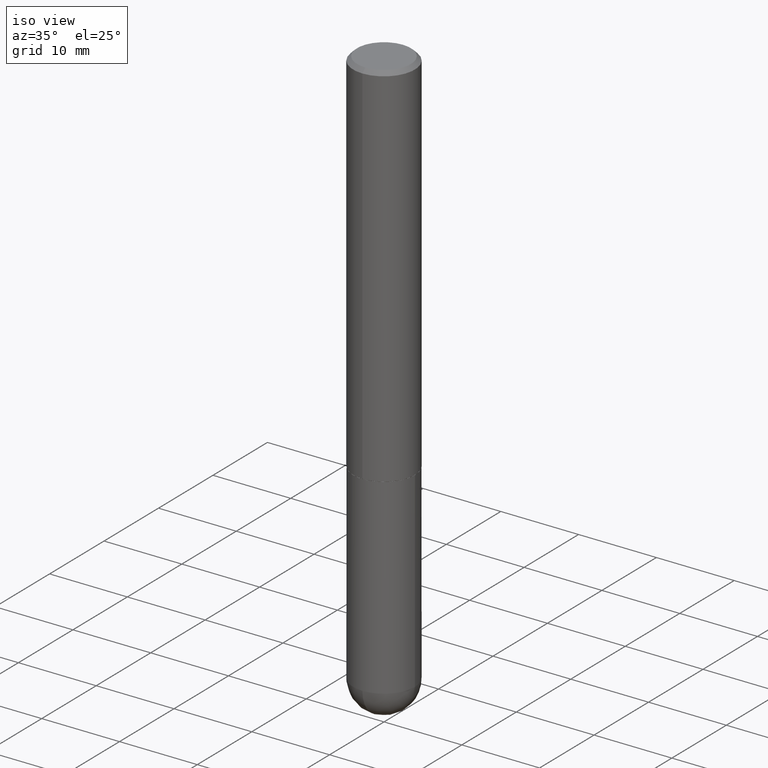
[diagram: clean part render]
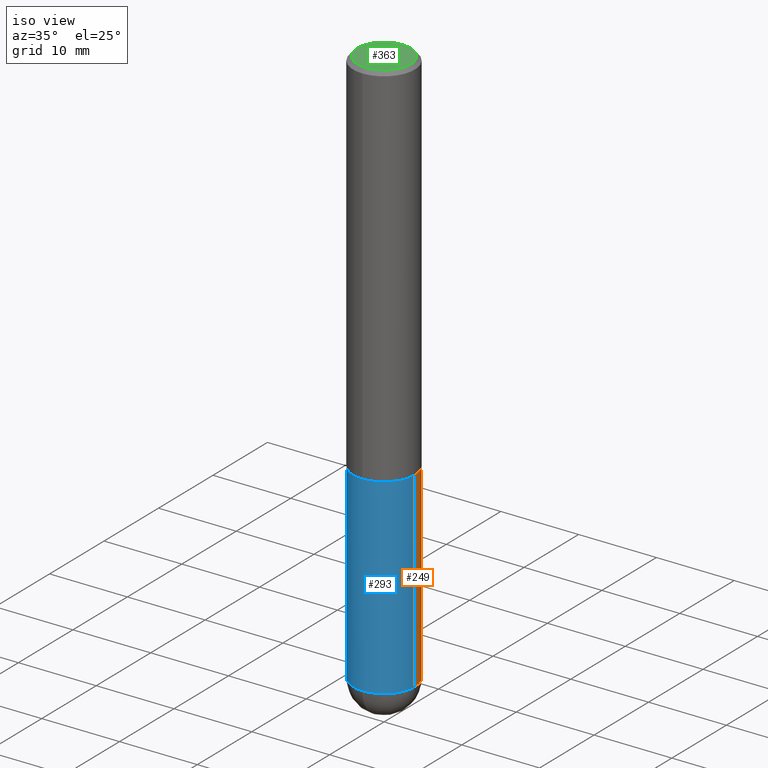
[diagram: same view with three faces highlighted in distinct colors, each labeled with its STEP entity id]
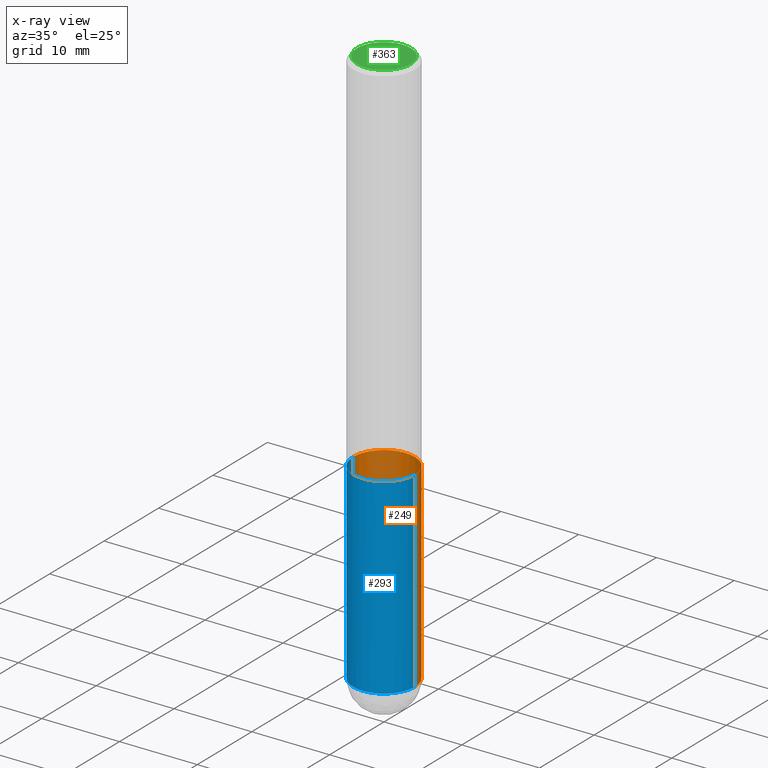
[diagram: x-ray of the same camera — body ghosted, the three highlighted faces saturated]
A machine part, iso view with three faces highlighted in distinct colors.
The next image is the same camera in x-ray (body ghosted, the three faces saturated) — at least one of them is partly hidden behind the body in this view.
Their STEP definitions:

[orange] entity #249 — the highlighted cylindrical surface (partial cylindrical patch) has radius 3.9688 mm, axis along (-0, 0, 1).
#26 = CARTESIAN_POINT ( 'NONE',  ( -0.1562500000000000000, 1.110223024625156540E-15, -7.685836078523291160E-30 ) ) ;
#42 = ORIENTED_EDGE ( 'NONE', *, *, #94, .T. ) ;
#57 = CARTESIAN_POINT ( 'NONE',  ( 0.000000000000000000, 0.000000000000000000, 0.000000000000000000 ) ) ;
#66 = VERTEX_POINT ( 'NONE', #193 ) ;
#68 = AXIS2_PLACEMENT_3D ( 'NONE', #57, #310, #221 ) ;
#72 = ORIENTED_EDGE ( 'NONE', *, *, #288, .T. ) ;
#89 = CARTESIAN_POINT ( 'NONE',  ( 4.585254011597131119E-29, -6.546527510330898707E-15, -1.875000000000000000 ) ) ;
#94 = EDGE_CURVE ( 'NONE', #159, #66, #392, .T. ) ;
#126 = DIRECTION ( 'NONE',  ( -2.445468806185136597E-29, 3.491481338843145583E-15, 1.000000000000000000 ) ) ;
#130 = EDGE_LOOP ( 'NONE', ( #42, #254, #222, #235, #72 ) ) ;
#131 = DIRECTION ( 'NONE',  ( 1.000000000000000000, -6.982962677686262766E-15, 0.000000000000000000 ) ) ;
#132 = DIRECTION ( 'NONE',  ( -2.445468806185136877E-29, 3.491481338843145188E-15, 1.000000000000000000 ) ) ;
#144 = AXIS2_PLACEMENT_3D ( 'NONE', #89, #314, #152 ) ;
#145 = CARTESIAN_POINT ( 'NONE',  ( 1.091087918388547213E-15, 0.1562499999999898970, -2.843750000000000444 ) ) ;
#149 = CARTESIAN_POINT ( 'NONE',  ( 0.1562500000000000000, -9.328801702221526319E-15, -2.843750000000000000 ) ) ;
#152 = DIRECTION ( 'NONE',  ( 1.000000000000000000, -6.982962677686269077E-15, 0.000000000000000000 ) ) ;
#159 = VERTEX_POINT ( 'NONE', #145 ) ;
#164 = EDGE_CURVE ( 'NONE', #381, #261, #231, .T. ) ;
#181 = CYLINDRICAL_SURFACE ( 'NONE', #68, 0.1562500000000000000 ) ;
#187 = CARTESIAN_POINT ( 'NONE',  ( -0.1562500000000000000, -7.127490759207891394E-15, -1.875000000000000000 ) ) ;
#193 = CARTESIAN_POINT ( 'NONE',  ( -0.1562500000000000000, -7.127490759207891394E-15, -2.843750000000000000 ) ) ;
#201 = VERTEX_POINT ( 'NONE', #149 ) ;
#221 = DIRECTION ( 'NONE',  ( 1.000000000000000000, -6.982962677686266711E-15, 4.876176775795936353E-29 ) ) ;
#222 = ORIENTED_EDGE ( 'NONE', *, *, #164, .F. ) ;
#231 = CIRCLE ( 'NONE', #144, 0.1562500000000000000 ) ;
#235 = ORIENTED_EDGE ( 'NONE', *, *, #323, .F. ) ;
#249 = ADVANCED_FACE ( 'NONE', ( #342 ), #181, .T. ) ;
#254 = ORIENTED_EDGE ( 'NONE', *, *, #313, .T. ) ;
#258 = CIRCLE ( 'NONE', #399, 0.1562500000000000000 ) ;
#260 = DIRECTION ( 'NONE',  ( -2.445468806185136597E-29, 3.491481338843145583E-15, 1.000000000000000000 ) ) ;
#261 = VERTEX_POINT ( 'NONE', #187 ) ;
#262 = LINE ( 'NONE', #327, #405 ) ;
#264 = DIRECTION ( 'NONE',  ( 1.000000000000000000, -6.982962677686262766E-15, 0.000000000000000000 ) ) ;
#288 = EDGE_CURVE ( 'NONE', #201, #159, #258, .T. ) ;
#292 = DIRECTION ( 'NONE',  ( -2.445468806185136877E-29, 3.491481338843145188E-15, 1.000000000000000000 ) ) ;
#310 = DIRECTION ( 'NONE',  ( -2.445468806185136597E-29, 3.491481338843145583E-15, 1.000000000000000000 ) ) ;
#313 = EDGE_CURVE ( 'NONE', #66, #261, #319, .T. ) ;
#314 = DIRECTION ( 'NONE',  ( -2.445468806185136597E-29, 3.491481338843145583E-15, 1.000000000000000000 ) ) ;
#316 = VECTOR ( 'NONE', #292, 39.37007874015748143 ) ;
#319 = LINE ( 'NONE', #26, #316 ) ;
#323 = EDGE_CURVE ( 'NONE', #201, #381, #262, .T. ) ;
#324 = CARTESIAN_POINT ( 'NONE',  ( 0.1562500000000000000, -7.637615428719378669E-15, -1.875000000000000000 ) ) ;
#326 = CARTESIAN_POINT ( 'NONE',  ( 6.954301917588981076E-29, -9.928900057335195583E-15, -2.843750000000000000 ) ) ;
#327 = CARTESIAN_POINT ( 'NONE',  ( 0.1562500000000000000, -1.091087918388479174E-15, 7.619026212181150377E-30 ) ) ;
#328 = CARTESIAN_POINT ( 'NONE',  ( 6.954301917588981076E-29, -9.928900057335195583E-15, -2.843750000000000000 ) ) ;
#342 = FACE_OUTER_BOUND ( 'NONE', #130, .T. ) ;
#381 = VERTEX_POINT ( 'NONE', #324 ) ;
#392 = CIRCLE ( 'NONE', #398, 0.1562500000000000000 ) ;
#398 = AXIS2_PLACEMENT_3D ( 'NONE', #326, #260, #131 ) ;
#399 = AXIS2_PLACEMENT_3D ( 'NONE', #328, #126, #264 ) ;
#405 = VECTOR ( 'NONE', #132, 39.37007874015748143 ) ;

[blue] entity #293 — the highlighted cylindrical surface (partial cylindrical patch) has radius 3.9688 mm, axis along (-0, 0, 1).
#8 = CARTESIAN_POINT ( 'NONE',  ( 0.000000000000000000, 0.000000000000000000, 0.000000000000000000 ) ) ;
#13 = AXIS2_PLACEMENT_3D ( 'NONE', #212, #207, #338 ) ;
#26 = CARTESIAN_POINT ( 'NONE',  ( -0.1562500000000000000, 1.110223024625156540E-15, -7.685836078523291160E-30 ) ) ;
#27 = EDGE_CURVE ( 'NONE', #261, #381, #289, .T. ) ;
#34 = CARTESIAN_POINT ( 'NONE',  ( 4.585254011597131119E-29, -6.546527510330898707E-15, -1.875000000000000000 ) ) ;
#52 = ORIENTED_EDGE ( 'NONE', *, *, #313, .F. ) ;
#66 = VERTEX_POINT ( 'NONE', #193 ) ;
#75 = AXIS2_PLACEMENT_3D ( 'NONE', #8, #194, #157 ) ;
#96 = CARTESIAN_POINT ( 'NONE',  ( -1.110223024625088698E-15, -0.1562500000000102418, -2.843749999999999556 ) ) ;
#115 = EDGE_CURVE ( 'NONE', #66, #252, #346, .T. ) ;
#132 = DIRECTION ( 'NONE',  ( -2.445468806185136877E-29, 3.491481338843145188E-15, 1.000000000000000000 ) ) ;
#137 = AXIS2_PLACEMENT_3D ( 'NONE', #34, #384, #353 ) ;
#147 = DIRECTION ( 'NONE',  ( -2.445468806185136597E-29, 3.491481338843145583E-15, 1.000000000000000000 ) ) ;
#149 = CARTESIAN_POINT ( 'NONE',  ( 0.1562500000000000000, -9.328801702221526319E-15, -2.843750000000000000 ) ) ;
#157 = DIRECTION ( 'NONE',  ( 1.000000000000000000, -6.982962677686266711E-15, 4.876176775795936353E-29 ) ) ;
#162 = AXIS2_PLACEMENT_3D ( 'NONE', #376, #147, #280 ) ;
#180 = ORIENTED_EDGE ( 'NONE', *, *, #115, .T. ) ;
#182 = ORIENTED_EDGE ( 'NONE', *, *, #323, .T. ) ;
#187 = CARTESIAN_POINT ( 'NONE',  ( -0.1562500000000000000, -7.127490759207891394E-15, -1.875000000000000000 ) ) ;
#193 = CARTESIAN_POINT ( 'NONE',  ( -0.1562500000000000000, -7.127490759207891394E-15, -2.843750000000000000 ) ) ;
#194 = DIRECTION ( 'NONE',  ( -2.445468806185136597E-29, 3.491481338843145583E-15, 1.000000000000000000 ) ) ;
#201 = VERTEX_POINT ( 'NONE', #149 ) ;
#207 = DIRECTION ( 'NONE',  ( -2.445468806185136597E-29, 3.491481338843145583E-15, 1.000000000000000000 ) ) ;
#212 = CARTESIAN_POINT ( 'NONE',  ( 6.954301917588981076E-29, -9.928900057335195583E-15, -2.843750000000000000 ) ) ;
#248 = EDGE_CURVE ( 'NONE', #252, #201, #331, .T. ) ;
#252 = VERTEX_POINT ( 'NONE', #96 ) ;
#261 = VERTEX_POINT ( 'NONE', #187 ) ;
#262 = LINE ( 'NONE', #327, #405 ) ;
#279 = EDGE_LOOP ( 'NONE', ( #52, #180, #343, #182, #377 ) ) ;
#280 = DIRECTION ( 'NONE',  ( 1.000000000000000000, -6.982962677686262766E-15, 0.000000000000000000 ) ) ;
#289 = CIRCLE ( 'NONE', #137, 0.1562500000000000000 ) ;
#292 = DIRECTION ( 'NONE',  ( -2.445468806185136877E-29, 3.491481338843145188E-15, 1.000000000000000000 ) ) ;
#293 = ADVANCED_FACE ( 'NONE', ( #296 ), #385, .T. ) ;
#296 = FACE_OUTER_BOUND ( 'NONE', #279, .T. ) ;
#313 = EDGE_CURVE ( 'NONE', #66, #261, #319, .T. ) ;
#316 = VECTOR ( 'NONE', #292, 39.37007874015748143 ) ;
#319 = LINE ( 'NONE', #26, #316 ) ;
#323 = EDGE_CURVE ( 'NONE', #201, #381, #262, .T. ) ;
#324 = CARTESIAN_POINT ( 'NONE',  ( 0.1562500000000000000, -7.637615428719378669E-15, -1.875000000000000000 ) ) ;
#327 = CARTESIAN_POINT ( 'NONE',  ( 0.1562500000000000000, -1.091087918388479174E-15, 7.619026212181150377E-30 ) ) ;
#331 = CIRCLE ( 'NONE', #13, 0.1562500000000000000 ) ;
#338 = DIRECTION ( 'NONE',  ( 1.000000000000000000, -6.982962677686262766E-15, 0.000000000000000000 ) ) ;
#343 = ORIENTED_EDGE ( 'NONE', *, *, #248, .T. ) ;
#346 = CIRCLE ( 'NONE', #162, 0.1562500000000000000 ) ;
#353 = DIRECTION ( 'NONE',  ( 1.000000000000000000, -6.982962677686269077E-15, 0.000000000000000000 ) ) ;
#376 = CARTESIAN_POINT ( 'NONE',  ( 6.954301917588981076E-29, -9.928900057335195583E-15, -2.843750000000000000 ) ) ;
#377 = ORIENTED_EDGE ( 'NONE', *, *, #27, .F. ) ;
#381 = VERTEX_POINT ( 'NONE', #324 ) ;
#384 = DIRECTION ( 'NONE',  ( -2.445468806185136597E-29, 3.491481338843145583E-15, 1.000000000000000000 ) ) ;
#385 = CYLINDRICAL_SURFACE ( 'NONE', #75, 0.1562500000000000000 ) ;
#405 = VECTOR ( 'NONE', #132, 39.37007874015748143 ) ;

[green] entity #363 — the highlighted planar face has unit normal (0, -0, -1).
#1 = FACE_OUTER_BOUND ( 'NONE', #37, .T. ) ;
#2 = DIRECTION ( 'NONE',  ( -6.982962677686266711E-15, -1.000000000000000000, 3.492105978576687253E-15 ) ) ;
#37 = EDGE_LOOP ( 'NONE', ( #237, #272 ) ) ;
#51 = DIRECTION ( 'NONE',  ( -6.982962677686266711E-15, -1.000000000000000000, 3.492105978576687253E-15 ) ) ;
#53 = CIRCLE ( 'NONE', #118, 0.1362499999999992051 ) ;
#60 = AXIS2_PLACEMENT_3D ( 'NONE', #253, #404, #51 ) ;
#103 = DIRECTION ( 'NONE',  ( -2.445032622590504256E-29, 3.492105978576687648E-15, 1.000000000000000000 ) ) ;
#109 = EDGE_CURVE ( 'NONE', #285, #116, #364, .T. ) ;
#116 = VERTEX_POINT ( 'NONE', #185 ) ;
#118 = AXIS2_PLACEMENT_3D ( 'NONE', #351, #103, #2 ) ;
#129 = DIRECTION ( 'NONE',  ( 6.982962677686265922E-15, 1.000000000000000000, -3.492105978576687648E-15 ) ) ;
#179 = AXIS2_PLACEMENT_3D ( 'NONE', #191, #390, #129 ) ;
#185 = CARTESIAN_POINT ( 'NONE',  ( 1.021258291611613706E-15, 0.1362499999999992051, 3.523770906621040234E-16 ) ) ;
#191 = CARTESIAN_POINT ( 'NONE',  ( 9.514286648347482384E-16, 0.1362499999999992051, -6.171117445948344714E-17 ) ) ;
#237 = ORIENTED_EDGE ( 'NONE', *, *, #318, .T. ) ;
#253 = CARTESIAN_POINT ( 'NONE',  ( -2.024918633708373989E-44, 2.892080212579088127E-30, 8.281765302431748671E-16 ) ) ;
#259 = CARTESIAN_POINT ( 'NONE',  ( -1.003347832174083517E-15, -0.1362499999999992051, 1.303975969824245809E-15 ) ) ;
#272 = ORIENTED_EDGE ( 'NONE', *, *, #109, .T. ) ;
#285 = VERTEX_POINT ( 'NONE', #259 ) ;
#318 = EDGE_CURVE ( 'NONE', #116, #285, #53, .T. ) ;
#349 = PLANE ( 'NONE',  #179 ) ;
#351 = CARTESIAN_POINT ( 'NONE',  ( -2.024918633708373989E-44, 2.892080212579088127E-30, 8.281765302431748671E-16 ) ) ;
#363 = ADVANCED_FACE ( 'NONE', ( #1 ), #349, .F. ) ;
#364 = CIRCLE ( 'NONE', #60, 0.1362499999999992051 ) ;
#390 = DIRECTION ( 'NONE',  ( 2.445032622590503976E-29, -3.492105978576687648E-15, -1.000000000000000000 ) ) ;
#404 = DIRECTION ( 'NONE',  ( -2.445032622590504256E-29, 3.492105978576687648E-15, 1.000000000000000000 ) ) ;